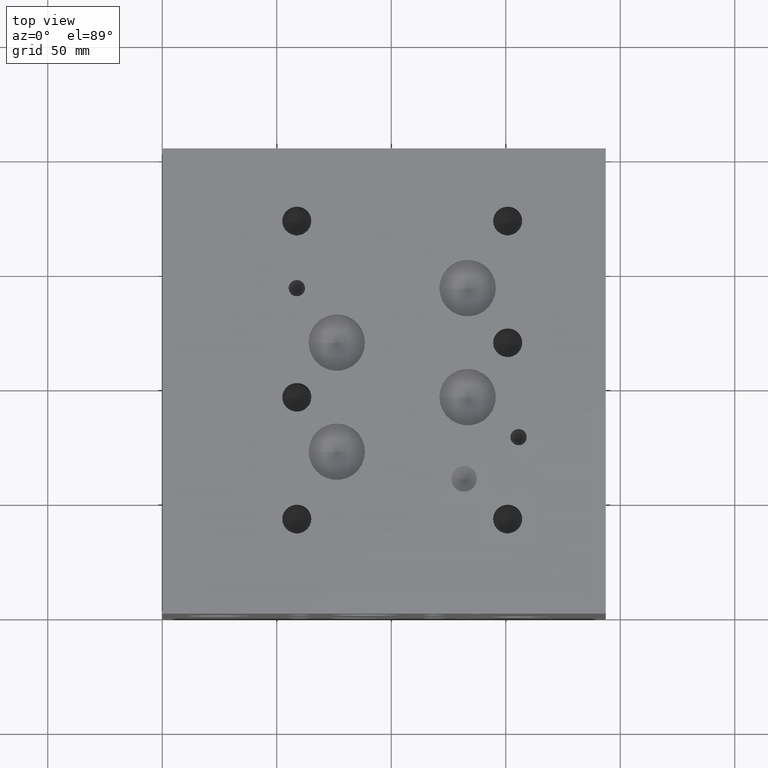
[diagram: clean part render]
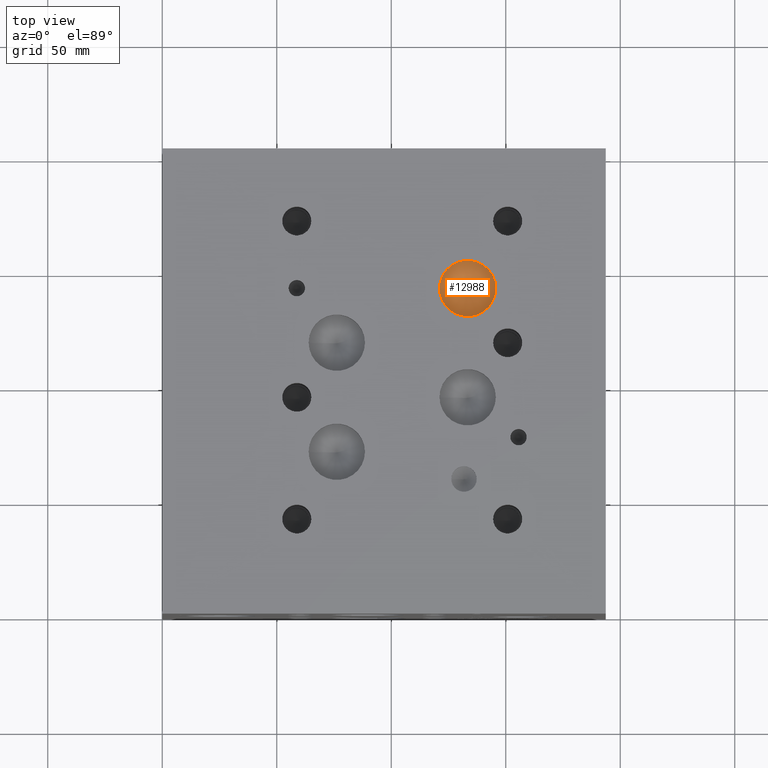
[diagram: same view with one face highlighted and labeled with its STEP entity id]
A machine part, top view. The second image highlights one B-rep face of the part: STEP entity #12988.
In plain terms, the highlighted conical surface has half-angle 60 deg.
Its self-contained STEP definition (entity closure, byte-faithful):
#62=CONICAL_SURFACE('',#13827,6.15315,1.0471975511966);
#463=CIRCLE('',#13828,12.3063);
#464=CIRCLE('',#13829,12.3063);
#1714=FACE_OUTER_BOUND('',#2502,.T.);
#2502=EDGE_LOOP('',(#11313,#11314,#11315,#11316));
#3692=LINE('',#22224,#4852);
#4852=VECTOR('',#16635,6.15315);
#6072=VERTEX_POINT('',#22220);
#6073=VERTEX_POINT('',#22221);
#6074=VERTEX_POINT('',#22223);
#7848=EDGE_CURVE('',#6072,#6073,#463,.T.);
#7849=EDGE_CURVE('',#6073,#6074,#3692,.T.);
#7850=EDGE_CURVE('',#6073,#6072,#464,.T.);
#11313=ORIENTED_EDGE('',*,*,#7848,.T.);
#11314=ORIENTED_EDGE('',*,*,#7849,.T.);
#11315=ORIENTED_EDGE('',*,*,#7849,.F.);
#11316=ORIENTED_EDGE('',*,*,#7850,.T.);
#12988=ADVANCED_FACE('',(#1714),#62,.F.);
#13827=AXIS2_PLACEMENT_3D('',#22219,#16631,#16632);
#13828=AXIS2_PLACEMENT_3D('',#22222,#16633,#16634);
#13829=AXIS2_PLACEMENT_3D('',#22225,#16636,#16637);
#16631=DIRECTION('center_axis',(0.,0.,1.));
#16632=DIRECTION('ref_axis',(1.,0.,0.));
#16633=DIRECTION('center_axis',(0.,0.,1.));
#16634=DIRECTION('ref_axis',(1.,0.,0.));
#16635=DIRECTION('',(0.866025403784439,1.06057523872491E-16,-0.5));
#16636=DIRECTION('center_axis',(0.,0.,1.));
#16637=DIRECTION('ref_axis',(1.,0.,0.));
#22219=CARTESIAN_POINT('Origin',(133.35,142.0876,141.742427191136));
#22220=CARTESIAN_POINT('',(145.6563,142.0876,145.29495));
#22221=CARTESIAN_POINT('',(121.0437,142.0876,145.29495));
#22222=CARTESIAN_POINT('Origin',(133.35,142.0876,145.29495));
#22223=CARTESIAN_POINT('',(133.35,142.0876,138.189904382272));
#22224=CARTESIAN_POINT('',(127.19685,142.0876,141.742427191136));
#22225=CARTESIAN_POINT('Origin',(133.35,142.0876,145.29495));